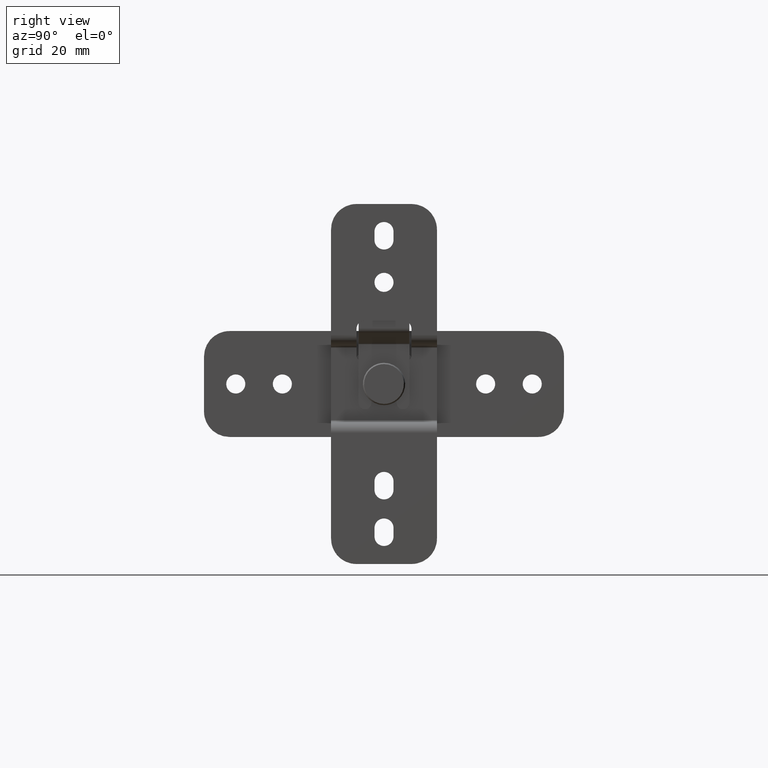
[diagram: clean part render]
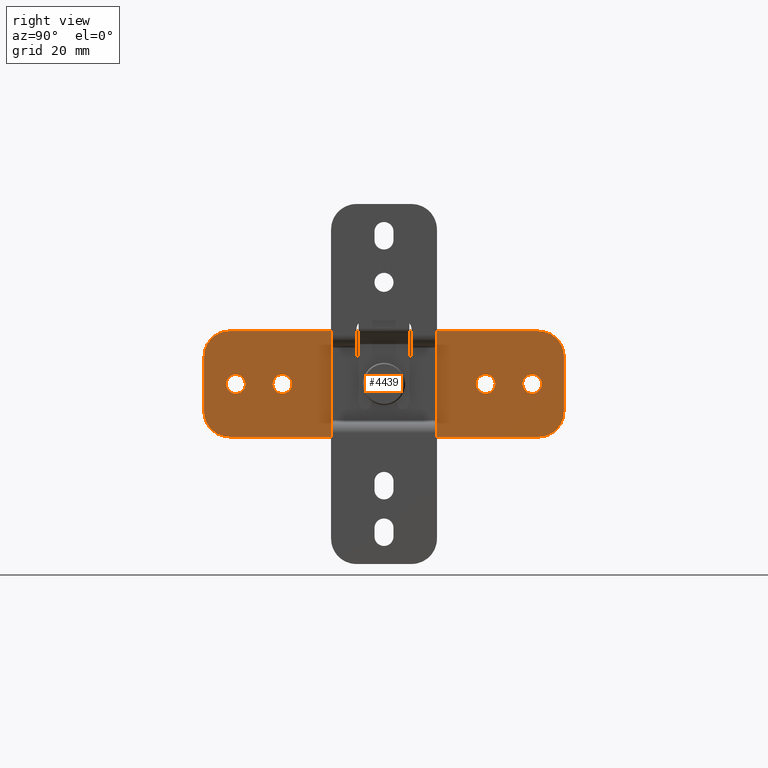
[diagram: same view with one face highlighted and labeled with its STEP entity id]
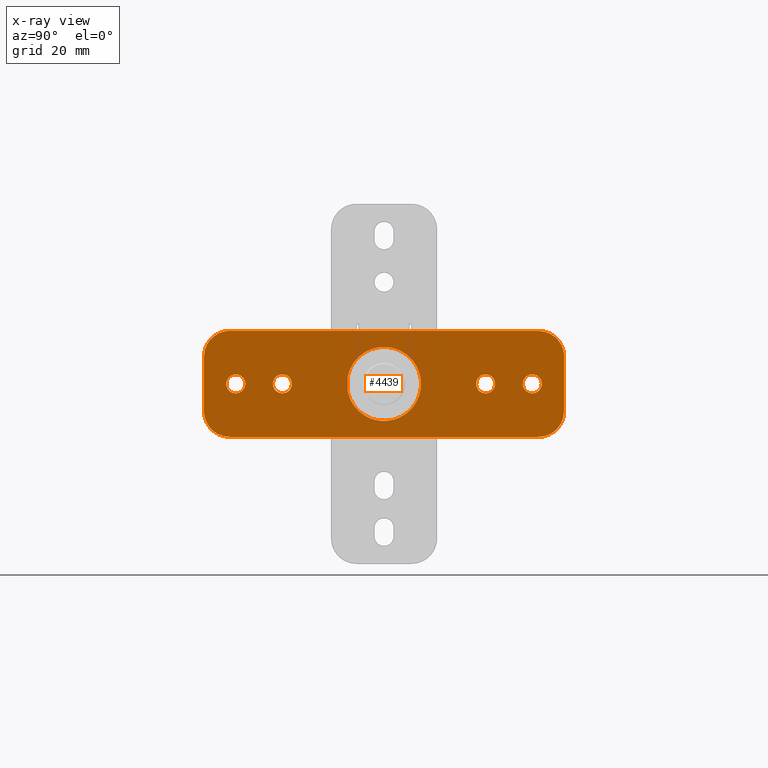
[diagram: x-ray of the same camera — body ghosted, the highlighted face saturated]
A machine part, right view. The second image highlights one B-rep face of the part: STEP entity #4439.
The next image is the same camera in x-ray: the body ghosted, the highlighted face saturated — about 0% of this face is hidden behind the body in this view.
In plain terms, the highlighted face is a freeform B-spline surface patch.
Its self-contained STEP definition (entity closure, byte-faithful):
#3115=CARTESIAN_POINT('',(113.500000000000000,34.999999999997762,-2.249999999967883));
#3116=VERTEX_POINT('',#3115);
#3117=CARTESIAN_POINT('',(113.499999999999800,32.756935728052802,-0.176529521329306));
#3118=VERTEX_POINT('',#3117);
#3119=CARTESIAN_POINT('',(113.500000000000000,34.999999999997762,-2.249999999967883));
#3120=CARTESIAN_POINT('',(113.499999999999900,32.920118190421881,-2.249999999967780));
#3121=CARTESIAN_POINT('',(113.499999999999770,32.756935728052788,-0.176529521329306));
#3129=(BOUNDED_CURVE()B_SPLINE_CURVE(2,(#3119,#3120,#3121),.UNSPECIFIED.,.F.,.U.)B_SPLINE_CURVE_WITH_KNOTS((3,3),(0.0,0.236331563839941),.UNSPECIFIED.)CURVE()GEOMETRIC_REPRESENTATION_ITEM()RATIONAL_B_SPLINE_CURVE((1.0,0.723120350238811,0.969723905465757))REPRESENTATION_ITEM(''));
#3130=EDGE_CURVE('',#3116,#3118,#3129,.T.);
#3132=CARTESIAN_POINT('',(113.499999999999800,37.243064271942707,0.176529521393539));
#3133=VERTEX_POINT('',#3132);
#3134=CARTESIAN_POINT('',(113.499999999999870,37.243064271942714,0.176529521393539));
#3135=CARTESIAN_POINT('',(113.499999999999820,37.249999999995161,0.088401010794997));
#3136=CARTESIAN_POINT('',(113.499999999999800,37.249999999995197,3.191663E-011));
#3137=CARTESIAN_POINT('',(113.499999999999900,37.249999999996533,-2.249999999967980));
#3138=CARTESIAN_POINT('',(113.500000000000000,34.999999999997762,-2.249999999967883));
#3146=(BOUNDED_CURVE()B_SPLINE_CURVE(2,(#3134,#3135,#3136,#3137,#3138),.UNSPECIFIED.,.F.,.U.)B_SPLINE_CURVE_WITH_KNOTS((3,2,3),(0.736331563839941,0.750000000000000,1.0),.UNSPECIFIED.)CURVE()GEOMETRIC_REPRESENTATION_ITEM()RATIONAL_B_SPLINE_CURVE((0.969723905465757,0.983986430947736,1.0,0.707106781186547,1.0))REPRESENTATION_ITEM(''));
#3147=EDGE_CURVE('',#3133,#3116,#3146,.T.);
#3214=CARTESIAN_POINT('',(113.500000000000000,34.999999999997762,2.250000000032117));
#3215=VERTEX_POINT('',#3214);
#3216=CARTESIAN_POINT('',(113.499999999999770,32.756935728052788,-0.176529521329306));
#3217=CARTESIAN_POINT('',(113.499999999999830,32.750000000000348,-0.088401010730763));
#3218=CARTESIAN_POINT('',(113.499999999999800,32.750000000000298,3.231675E-011));
#3219=CARTESIAN_POINT('',(113.499999999999900,32.749999999998984,2.250000000032213));
#3220=CARTESIAN_POINT('',(113.500000000000000,34.999999999997762,2.250000000032117));
#3228=(BOUNDED_CURVE()B_SPLINE_CURVE(2,(#3216,#3217,#3218,#3219,#3220),.UNSPECIFIED.,.F.,.U.)B_SPLINE_CURVE_WITH_KNOTS((3,2,3),(0.236331563839941,0.250000000000000,0.500000000000000),.UNSPECIFIED.)CURVE()GEOMETRIC_REPRESENTATION_ITEM()RATIONAL_B_SPLINE_CURVE((0.969723905465757,0.983986430947736,1.0,0.707106781186547,1.0))REPRESENTATION_ITEM(''));
#3229=EDGE_CURVE('',#3118,#3215,#3228,.T.);
#3263=CARTESIAN_POINT('',(113.500000000000000,34.999999999997762,2.250000000032117));
#3264=CARTESIAN_POINT('',(113.499999999999910,37.079881809573621,2.250000000032012));
#3265=CARTESIAN_POINT('',(113.499999999999870,37.243064271942714,0.176529521393539));
#3273=(BOUNDED_CURVE()B_SPLINE_CURVE(2,(#3263,#3264,#3265),.UNSPECIFIED.,.F.,.U.)B_SPLINE_CURVE_WITH_KNOTS((3,3),(0.500000000000000,0.736331563839941),.UNSPECIFIED.)CURVE()GEOMETRIC_REPRESENTATION_ITEM()RATIONAL_B_SPLINE_CURVE((1.0,0.723120350238811,0.969723905465757))REPRESENTATION_ITEM(''));
#3274=EDGE_CURVE('',#3215,#3133,#3273,.T.);
#3297=CARTESIAN_POINT('',(113.500000000000000,23.999999999997751,-2.249999999967883));
#3298=VERTEX_POINT('',#3297);
#3299=CARTESIAN_POINT('',(113.499999999999800,21.756935728052792,-0.176529521329306));
#3300=VERTEX_POINT('',#3299);
#3301=CARTESIAN_POINT('',(113.500000000000000,23.999999999997751,-2.249999999967883));
#3302=CARTESIAN_POINT('',(113.499999999999910,21.920118190421871,-2.249999999967780));
#3303=CARTESIAN_POINT('',(113.499999999999870,21.756935728052792,-0.176529521329306));
#3311=(BOUNDED_CURVE()B_SPLINE_CURVE(2,(#3301,#3302,#3303),.UNSPECIFIED.,.F.,.U.)B_SPLINE_CURVE_WITH_KNOTS((3,3),(0.0,0.236331563839941),.UNSPECIFIED.)CURVE()GEOMETRIC_REPRESENTATION_ITEM()RATIONAL_B_SPLINE_CURVE((1.0,0.723120350238811,0.969723905465757))REPRESENTATION_ITEM(''));
#3312=EDGE_CURVE('',#3298,#3300,#3311,.T.);
#3314=CARTESIAN_POINT('',(113.499999999999800,26.243064271942711,0.176529521393539));
#3315=VERTEX_POINT('',#3314);
#3316=CARTESIAN_POINT('',(113.499999999999870,26.243064271942711,0.176529521393539));
#3317=CARTESIAN_POINT('',(113.499999999999820,26.249999999995154,0.088401010794997));
#3318=CARTESIAN_POINT('',(113.499999999999800,26.249999999995200,3.191663E-011));
#3319=CARTESIAN_POINT('',(113.499999999999900,26.249999999996522,-2.249999999967980));
#3320=CARTESIAN_POINT('',(113.500000000000000,23.999999999997751,-2.249999999967883));
#3328=(BOUNDED_CURVE()B_SPLINE_CURVE(2,(#3316,#3317,#3318,#3319,#3320),.UNSPECIFIED.,.F.,.U.)B_SPLINE_CURVE_WITH_KNOTS((3,2,3),(0.736331563839941,0.750000000000000,1.0),.UNSPECIFIED.)CURVE()GEOMETRIC_REPRESENTATION_ITEM()RATIONAL_B_SPLINE_CURVE((0.969723905465757,0.983986430947736,1.0,0.707106781186547,1.0))REPRESENTATION_ITEM(''));
#3329=EDGE_CURVE('',#3315,#3298,#3328,.T.);
#3396=CARTESIAN_POINT('',(113.500000000000000,23.999999999997751,2.250000000032117));
#3397=VERTEX_POINT('',#3396);
#3398=CARTESIAN_POINT('',(113.499999999999870,21.756935728052792,-0.176529521329306));
#3399=CARTESIAN_POINT('',(113.499999999999820,21.750000000000348,-0.088401010730764));
#3400=CARTESIAN_POINT('',(113.499999999999800,21.750000000000298,3.231624E-011));
#3401=CARTESIAN_POINT('',(113.499999999999900,21.749999999998973,2.250000000032212));
#3402=CARTESIAN_POINT('',(113.500000000000000,23.999999999997751,2.250000000032117));
#3410=(BOUNDED_CURVE()B_SPLINE_CURVE(2,(#3398,#3399,#3400,#3401,#3402),.UNSPECIFIED.,.F.,.U.)B_SPLINE_CURVE_WITH_KNOTS((3,2,3),(0.236331563839941,0.250000000000000,0.500000000000000),.UNSPECIFIED.)CURVE()GEOMETRIC_REPRESENTATION_ITEM()RATIONAL_B_SPLINE_CURVE((0.969723905465757,0.983986430947736,1.0,0.707106781186547,1.0))REPRESENTATION_ITEM(''));
#3411=EDGE_CURVE('',#3300,#3397,#3410,.T.);
#3445=CARTESIAN_POINT('',(113.500000000000000,23.999999999997751,2.250000000032117));
#3446=CARTESIAN_POINT('',(113.499999999999910,26.079881809573610,2.250000000032012));
#3447=CARTESIAN_POINT('',(113.499999999999870,26.243064271942711,0.176529521393539));
#3455=(BOUNDED_CURVE()B_SPLINE_CURVE(2,(#3445,#3446,#3447),.UNSPECIFIED.,.F.,.U.)B_SPLINE_CURVE_WITH_KNOTS((3,3),(0.500000000000000,0.736331563839941),.UNSPECIFIED.)CURVE()GEOMETRIC_REPRESENTATION_ITEM()RATIONAL_B_SPLINE_CURVE((1.0,0.723120350238811,0.969723905465757))REPRESENTATION_ITEM(''));
#3456=EDGE_CURVE('',#3397,#3315,#3455,.T.);
#3479=CARTESIAN_POINT('',(113.500000000000000,-24.000000000002299,-2.249999999967883));
#3480=VERTEX_POINT('',#3479);
#3481=CARTESIAN_POINT('',(113.499999999999800,-26.243064271947262,-0.176529521329306));
#3482=VERTEX_POINT('',#3481);
#3483=CARTESIAN_POINT('',(113.500000000000000,-24.000000000002299,-2.249999999967883));
#3484=CARTESIAN_POINT('',(113.499999999999900,-26.079881809578175,-2.249999999967780));
#3485=CARTESIAN_POINT('',(113.499999999999870,-26.243064271947269,-0.176529521329306));
#3493=(BOUNDED_CURVE()B_SPLINE_CURVE(2,(#3483,#3484,#3485),.UNSPECIFIED.,.F.,.U.)B_SPLINE_CURVE_WITH_KNOTS((3,3),(0.0,0.236331563839941),.UNSPECIFIED.)CURVE()GEOMETRIC_REPRESENTATION_ITEM()RATIONAL_B_SPLINE_CURVE((1.0,0.723120350238811,0.969723905465757))REPRESENTATION_ITEM(''));
#3494=EDGE_CURVE('',#3480,#3482,#3493,.T.);
#3496=CARTESIAN_POINT('',(113.499999999999800,-21.756935728057339,0.176529521393539));
#3497=VERTEX_POINT('',#3496);
#3498=CARTESIAN_POINT('',(113.499999999999870,-21.756935728057339,0.176529521393539));
#3499=CARTESIAN_POINT('',(113.499999999999820,-21.750000000004903,0.088401010794997));
#3500=CARTESIAN_POINT('',(113.499999999999800,-21.750000000004849,3.191663E-011));
#3501=CARTESIAN_POINT('',(113.499999999999900,-21.750000000003528,-2.249999999967980));
#3502=CARTESIAN_POINT('',(113.500000000000000,-24.000000000002299,-2.249999999967883));
#3510=(BOUNDED_CURVE()B_SPLINE_CURVE(2,(#3498,#3499,#3500,#3501,#3502),.UNSPECIFIED.,.F.,.U.)B_SPLINE_CURVE_WITH_KNOTS((3,2,3),(0.736331563839941,0.750000000000000,1.0),.UNSPECIFIED.)CURVE()GEOMETRIC_REPRESENTATION_ITEM()RATIONAL_B_SPLINE_CURVE((0.969723905465757,0.983986430947736,1.0,0.707106781186547,1.0))REPRESENTATION_ITEM(''));
#3511=EDGE_CURVE('',#3497,#3480,#3510,.T.);
#3578=CARTESIAN_POINT('',(113.500000000000000,-24.000000000002299,2.250000000032117));
#3579=VERTEX_POINT('',#3578);
#3580=CARTESIAN_POINT('',(113.499999999999870,-26.243064271947269,-0.176529521329306));
#3581=CARTESIAN_POINT('',(113.499999999999820,-26.249999999999705,-0.088401010730763));
#3582=CARTESIAN_POINT('',(113.499999999999800,-26.249999999999758,3.231659E-011));
#3583=CARTESIAN_POINT('',(113.499999999999910,-26.250000000001073,2.250000000032213));
#3584=CARTESIAN_POINT('',(113.500000000000000,-24.000000000002299,2.250000000032117));
#3592=(BOUNDED_CURVE()B_SPLINE_CURVE(2,(#3580,#3581,#3582,#3583,#3584),.UNSPECIFIED.,.F.,.U.)B_SPLINE_CURVE_WITH_KNOTS((3,2,3),(0.236331563839941,0.250000000000000,0.500000000000000),.UNSPECIFIED.)CURVE()GEOMETRIC_REPRESENTATION_ITEM()RATIONAL_B_SPLINE_CURVE((0.969723905465757,0.983986430947736,1.0,0.707106781186547,1.0))REPRESENTATION_ITEM(''));
#3593=EDGE_CURVE('',#3482,#3579,#3592,.T.);
#3627=CARTESIAN_POINT('',(113.500000000000000,-24.000000000002299,2.250000000032117));
#3628=CARTESIAN_POINT('',(113.499999999999910,-21.920118190426436,2.250000000032012));
#3629=CARTESIAN_POINT('',(113.499999999999870,-21.756935728057339,0.176529521393539));
#3637=(BOUNDED_CURVE()B_SPLINE_CURVE(2,(#3627,#3628,#3629),.UNSPECIFIED.,.F.,.U.)B_SPLINE_CURVE_WITH_KNOTS((3,3),(0.500000000000000,0.736331563839941),.UNSPECIFIED.)CURVE()GEOMETRIC_REPRESENTATION_ITEM()RATIONAL_B_SPLINE_CURVE((1.0,0.723120350238811,0.969723905465757))REPRESENTATION_ITEM(''));
#3638=EDGE_CURVE('',#3579,#3497,#3637,.T.);
#3661=CARTESIAN_POINT('',(113.500000000000000,-35.000000000002252,-2.249999999967883));
#3662=VERTEX_POINT('',#3661);
#3663=CARTESIAN_POINT('',(113.499999999999800,-37.243064271947212,-0.176529521329306));
#3664=VERTEX_POINT('',#3663);
#3665=CARTESIAN_POINT('',(113.500000000000000,-35.000000000002252,-2.249999999967883));
#3666=CARTESIAN_POINT('',(113.499999999999900,-37.079881809578126,-2.249999999967780));
#3667=CARTESIAN_POINT('',(113.499999999999870,-37.243064271947219,-0.176529521329306));
#3675=(BOUNDED_CURVE()B_SPLINE_CURVE(2,(#3665,#3666,#3667),.UNSPECIFIED.,.F.,.U.)B_SPLINE_CURVE_WITH_KNOTS((3,3),(0.0,0.236331563839941),.UNSPECIFIED.)CURVE()GEOMETRIC_REPRESENTATION_ITEM()RATIONAL_B_SPLINE_CURVE((1.0,0.723120350238811,0.969723905465757))REPRESENTATION_ITEM(''));
#3676=EDGE_CURVE('',#3662,#3664,#3675,.T.);
#3678=CARTESIAN_POINT('',(113.499999999999800,-32.756935728057293,0.176529521393539));
#3679=VERTEX_POINT('',#3678);
#3680=CARTESIAN_POINT('',(113.499999999999870,-32.756935728057293,0.176529521393539));
#3681=CARTESIAN_POINT('',(113.499999999999820,-32.750000000004846,0.088401010794997));
#3682=CARTESIAN_POINT('',(113.499999999999800,-32.750000000004803,3.191663E-011));
#3683=CARTESIAN_POINT('',(113.499999999999900,-32.750000000003475,-2.249999999967980));
#3684=CARTESIAN_POINT('',(113.500000000000000,-35.000000000002252,-2.249999999967883));
#3692=(BOUNDED_CURVE()B_SPLINE_CURVE(2,(#3680,#3681,#3682,#3683,#3684),.UNSPECIFIED.,.F.,.U.)B_SPLINE_CURVE_WITH_KNOTS((3,2,3),(0.736331563839941,0.750000000000000,1.0),.UNSPECIFIED.)CURVE()GEOMETRIC_REPRESENTATION_ITEM()RATIONAL_B_SPLINE_CURVE((0.969723905465757,0.983986430947736,1.0,0.707106781186547,1.0))REPRESENTATION_ITEM(''));
#3693=EDGE_CURVE('',#3679,#3662,#3692,.T.);
#3760=CARTESIAN_POINT('',(113.500000000000000,-35.000000000002252,2.250000000032117));
#3761=VERTEX_POINT('',#3760);
#3762=CARTESIAN_POINT('',(113.499999999999870,-37.243064271947219,-0.176529521329306));
#3763=CARTESIAN_POINT('',(113.499999999999820,-37.249999999999666,-0.088401010730763));
#3764=CARTESIAN_POINT('',(113.499999999999800,-37.249999999999723,3.231659E-011));
#3765=CARTESIAN_POINT('',(113.499999999999910,-37.250000000001030,2.250000000032213));
#3766=CARTESIAN_POINT('',(113.500000000000000,-35.000000000002252,2.250000000032117));
#3774=(BOUNDED_CURVE()B_SPLINE_CURVE(2,(#3762,#3763,#3764,#3765,#3766),.UNSPECIFIED.,.F.,.U.)B_SPLINE_CURVE_WITH_KNOTS((3,2,3),(0.236331563839941,0.250000000000000,0.500000000000000),.UNSPECIFIED.)CURVE()GEOMETRIC_REPRESENTATION_ITEM()RATIONAL_B_SPLINE_CURVE((0.969723905465757,0.983986430947736,1.0,0.707106781186547,1.0))REPRESENTATION_ITEM(''));
#3775=EDGE_CURVE('',#3664,#3761,#3774,.T.);
#3809=CARTESIAN_POINT('',(113.500000000000000,-35.000000000002252,2.250000000032117));
#3810=CARTESIAN_POINT('',(113.499999999999910,-32.920118190426386,2.250000000032012));
#3811=CARTESIAN_POINT('',(113.499999999999870,-32.756935728057293,0.176529521393539));
#3819=(BOUNDED_CURVE()B_SPLINE_CURVE(2,(#3809,#3810,#3811),.UNSPECIFIED.,.F.,.U.)B_SPLINE_CURVE_WITH_KNOTS((3,3),(0.500000000000000,0.736331563839941),.UNSPECIFIED.)CURVE()GEOMETRIC_REPRESENTATION_ITEM()RATIONAL_B_SPLINE_CURVE((1.0,0.723120350238811,0.969723905465757))REPRESENTATION_ITEM(''));
#3820=EDGE_CURVE('',#3761,#3679,#3819,.T.);
#4112=CARTESIAN_POINT('',(113.500000000000000,-42.500000000002252,-6.499999999967890));
#4113=VERTEX_POINT('',#4112);
#4114=CARTESIAN_POINT('',(113.500000000000000,-42.500000000002501,6.500000000032120));
#4115=VERTEX_POINT('',#4114);
#4116=CARTESIAN_POINT('',(113.500000000000000,-42.500000000002252,-6.499999999967890));
#4117=CARTESIAN_POINT('',(113.500000000000000,-42.500000000002501,6.500000000032120));
#4118=QUASI_UNIFORM_CURVE('',1,(#4116,#4117),.UNSPECIFIED.,.F.,.U.);
#4119=EDGE_CURVE('',#4113,#4115,#4118,.T.);
#4149=CARTESIAN_POINT('',(113.500000000000000,-36.500000000002302,-12.499999999967899));
#4150=VERTEX_POINT('',#4149);
#4151=CARTESIAN_POINT('',(113.500000000000000,-36.500000000002302,-12.499999999967880));
#4152=CARTESIAN_POINT('',(113.500000000000000,-42.500000000002288,-12.499999999967880));
#4153=CARTESIAN_POINT('',(113.500000000000000,-42.500000000002302,-6.499999999967880));
#4161=(BOUNDED_CURVE()B_SPLINE_CURVE(2,(#4151,#4152,#4153),.UNSPECIFIED.,.F.,.U.)CURVE()GEOMETRIC_REPRESENTATION_ITEM()QUASI_UNIFORM_CURVE()RATIONAL_B_SPLINE_CURVE((1.0,0.707106781186548,1.0))REPRESENTATION_ITEM(''));
#4162=EDGE_CURVE('',#4150,#4113,#4161,.T.);
#4179=CARTESIAN_POINT('',(113.500000000000000,36.499999999997762,-12.499999999967701));
#4180=VERTEX_POINT('',#4179);
#4181=CARTESIAN_POINT('',(113.500000000000000,36.499999999997762,-12.499999999967701));
#4182=CARTESIAN_POINT('',(113.500000000000000,-36.500000000002302,-12.499999999967899));
#4183=QUASI_UNIFORM_CURVE('',1,(#4181,#4182),.UNSPECIFIED.,.F.,.U.);
#4184=EDGE_CURVE('',#4180,#4150,#4183,.T.);
#4210=CARTESIAN_POINT('',(113.500000000000000,42.499999999997762,-6.499999999967709));
#4211=VERTEX_POINT('',#4210);
#4212=CARTESIAN_POINT('',(113.500000000000000,42.499999999997762,-6.499999999967709));
#4213=CARTESIAN_POINT('',(113.500000000000000,42.499999999997748,-12.499999999967713));
#4214=CARTESIAN_POINT('',(113.500000000000000,36.499999999997762,-12.499999999967709));
#4222=(BOUNDED_CURVE()B_SPLINE_CURVE(2,(#4212,#4213,#4214),.UNSPECIFIED.,.F.,.U.)CURVE()GEOMETRIC_REPRESENTATION_ITEM()QUASI_UNIFORM_CURVE()RATIONAL_B_SPLINE_CURVE((1.0,0.707106781186548,1.0))REPRESENTATION_ITEM(''));
#4223=EDGE_CURVE('',#4211,#4180,#4222,.T.);
#4240=CARTESIAN_POINT('',(113.500000000000000,42.499999999997762,6.500000000032120));
#4241=VERTEX_POINT('',#4240);
#4242=CARTESIAN_POINT('',(113.500000000000000,42.499999999997762,6.500000000032120));
#4243=CARTESIAN_POINT('',(113.500000000000000,42.499999999997762,-6.499999999967709));
#4244=QUASI_UNIFORM_CURVE('',1,(#4242,#4243),.UNSPECIFIED.,.F.,.U.);
#4245=EDGE_CURVE('',#4241,#4211,#4244,.T.);
#4271=CARTESIAN_POINT('',(113.500000000000000,36.499999999997762,12.500000000032120));
#4272=VERTEX_POINT('',#4271);
#4273=CARTESIAN_POINT('',(113.500000000000000,36.499999999997762,12.500000000032120));
#4274=CARTESIAN_POINT('',(113.500000000000000,42.499999999997748,12.500000000032117));
#4275=CARTESIAN_POINT('',(113.500000000000000,42.499999999997762,6.500000000032120));
#4283=(BOUNDED_CURVE()B_SPLINE_CURVE(2,(#4273,#4274,#4275),.UNSPECIFIED.,.F.,.U.)CURVE()GEOMETRIC_REPRESENTATION_ITEM()QUASI_UNIFORM_CURVE()RATIONAL_B_SPLINE_CURVE((1.0,0.707106781186548,1.0))REPRESENTATION_ITEM(''));
#4284=EDGE_CURVE('',#4272,#4241,#4283,.T.);
#4301=CARTESIAN_POINT('',(113.500000000000000,-36.500000000002302,12.500000000032120));
#4302=VERTEX_POINT('',#4301);
#4303=CARTESIAN_POINT('',(113.500000000000000,-36.500000000002302,12.500000000032120));
#4304=CARTESIAN_POINT('',(113.500000000000000,36.499999999997762,12.500000000032120));
#4305=QUASI_UNIFORM_CURVE('',1,(#4303,#4304),.UNSPECIFIED.,.F.,.U.);
#4306=EDGE_CURVE('',#4302,#4272,#4305,.T.);
#4332=CARTESIAN_POINT('',(113.500000000000000,-42.500000000002302,6.500000000032120));
#4333=CARTESIAN_POINT('',(113.500000000000000,-42.500000000002288,12.500000000032117));
#4334=CARTESIAN_POINT('',(113.500000000000000,-36.500000000002302,12.500000000032120));
#4342=(BOUNDED_CURVE()B_SPLINE_CURVE(2,(#4332,#4333,#4334),.UNSPECIFIED.,.F.,.U.)CURVE()GEOMETRIC_REPRESENTATION_ITEM()QUASI_UNIFORM_CURVE()RATIONAL_B_SPLINE_CURVE((1.0,0.707106781186548,1.0))REPRESENTATION_ITEM(''));
#4343=EDGE_CURVE('',#4115,#4302,#4342,.T.);
#4351=CARTESIAN_POINT('',(113.500000000000000,46.745749835251267,-13.748749951513050));
#4352=CARTESIAN_POINT('',(113.500000000000000,-46.745752115133683,-13.748749951513050));
#4353=CARTESIAN_POINT('',(113.500000000000000,46.745749835251267,13.748750622129529));
#4354=CARTESIAN_POINT('',(113.500000000000000,-46.745752115133683,13.748750622129529));
#4355=B_SPLINE_SURFACE_WITH_KNOTS('',1,1,((#4351,#4353),(#4352,#4354)),.UNSPECIFIED.,.F.,.F.,.U.,(2,2),(2,2),(0.0,93.491501950384958),(0.0,27.497500573642579),.UNSPECIFIED.);
#4356=ORIENTED_EDGE('',*,*,#4343,.F.);
#4357=ORIENTED_EDGE('',*,*,#4119,.F.);
#4358=ORIENTED_EDGE('',*,*,#4162,.F.);
#4359=ORIENTED_EDGE('',*,*,#4184,.F.);
#4360=ORIENTED_EDGE('',*,*,#4223,.F.);
#4361=ORIENTED_EDGE('',*,*,#4245,.F.);
#4362=ORIENTED_EDGE('',*,*,#4284,.F.);
#4363=ORIENTED_EDGE('',*,*,#4306,.F.);
#4364=EDGE_LOOP('',(#4356,#4357,#4358,#4359,#4360,#4361,#4362,#4363));
#4365=FACE_OUTER_BOUND('',#4364,.T.);
#4366=CARTESIAN_POINT('',(113.500000000000000,-8.549999999967881,1.860107523802490));
#4367=VERTEX_POINT('',#4366);
#4368=CARTESIAN_POINT('',(113.500000000000000,-8.550000000005941,-1.860107523746535));
#4369=VERTEX_POINT('',#4368);
#4370=CARTESIAN_POINT('',(113.500000000000000,-8.549999999967881,1.860107523802490));
#4371=CARTESIAN_POINT('',(113.500000000000000,-8.443691484513913,2.348943579684955));
#4372=CARTESIAN_POINT('',(113.500000000000200,-8.156755708863477,3.276335436281433));
#4373=CARTESIAN_POINT('',(113.500000000000000,-7.390508003453893,4.801071948203357));
#4374=CARTESIAN_POINT('',(113.499999999998710,-6.281872035078447,6.195832582450008));
#4375=CARTESIAN_POINT('',(113.500000000001090,-4.896476241843902,7.307203028898116));
#4376=CARTESIAN_POINT('',(113.499999999998590,-3.662494573753856,7.979607162099689));
#4377=CARTESIAN_POINT('',(113.500000000001410,-2.284290197674377,8.492197308497703));
#4378=CARTESIAN_POINT('',(113.499999999998290,-0.866150040969196,8.756799027313356));
#4379=CARTESIAN_POINT('',(113.500000000003400,0.839550753148476,8.759376514655422));
#4380=CARTESIAN_POINT('',(113.499999999996110,2.192452674374952,8.511214059580809));
#4381=CARTESIAN_POINT('',(113.500000000003200,3.514033003766387,8.041330382855390));
#4382=CARTESIAN_POINT('',(113.499999999999900,4.854494163101806,7.355551691314618));
#4383=CARTESIAN_POINT('',(113.499999999997500,6.162638417499914,6.300148332029796));
#4384=CARTESIAN_POINT('',(113.500000000007900,7.264810983458605,4.953815249133425));
#4385=CARTESIAN_POINT('',(113.499999999995200,8.089106334068553,3.496116680121411));
#4386=CARTESIAN_POINT('',(113.499999999995790,8.568529867951600,1.992915307367704));
#4387=CARTESIAN_POINT('',(113.500000000011000,8.765570669025488,0.502082036299087));
#4388=CARTESIAN_POINT('',(113.499999999995100,8.747863617616540,-1.070435744849857));
#4389=CARTESIAN_POINT('',(113.500000000001610,8.363716373497393,-2.810177306790918));
#4390=CARTESIAN_POINT('',(113.499999999999600,7.535390096410294,-4.568481822263905));
#4391=CARTESIAN_POINT('',(113.500000000000100,6.545608955984971,-5.881048394393596));
#4392=CARTESIAN_POINT('',(113.500000000000000,5.288012840512675,-7.033387315154010));
#4393=CARTESIAN_POINT('',(113.500000000000100,4.007954736455607,-7.833783577614942));
#4394=CARTESIAN_POINT('',(113.499999999999900,2.452425560903734,-8.447550166451583));
#4395=CARTESIAN_POINT('',(113.500000000000100,0.973306415155390,-8.745235976889456));
#4396=CARTESIAN_POINT('',(113.500000000000000,-0.465265463033767,-8.767643341625222));
#4397=CARTESIAN_POINT('',(113.500000000000000,-1.857497108793345,-8.589483638473610));
#4398=CARTESIAN_POINT('',(113.500000000000000,-3.239345044008031,-8.181054859519504));
#4399=CARTESIAN_POINT('',(113.499999999999600,-4.731363563465478,-7.422487232617392));
#4400=CARTESIAN_POINT('',(113.500000000001290,-5.950713384270960,-6.478028954836330));
#4401=CARTESIAN_POINT('',(113.500000000002800,-6.936910993986083,-5.385827863512492));
#4402=CARTESIAN_POINT('',(113.499999999980600,-7.898686655977418,-3.936817980460448));
#4403=CARTESIAN_POINT('',(113.500000000048400,-8.365990325915305,-2.707565852287080));
#4404=CARTESIAN_POINT('',(113.500000000000000,-8.550000000005941,-1.860107523746535));
#4405=B_SPLINE_CURVE_WITH_KNOTS('',3,(#4370,#4371,#4372,#4373,#4374,#4375,#4376,#4377,#4378,#4379,#4380,#4381,#4382,#4383,#4384,#4385,#4386,#4387,#4388,#4389,#4390,#4391,#4392,#4393,#4394,#4395,#4396,#4397,#4398,#4399,#4400,#4401,#4402,#4403,#4404),.UNSPECIFIED.,.F.,.U.,(4,1,1,1,1,1,1,1,1,1,1,1,1,1,1,1,1,1,1,1,1,1,1,1,1,1,1,1,1,1,1,1,4),(0.000000463653357,1.500788953094663,2.901656905191175,5.102905897109785,6.803900690264968,8.204727348441793,9.305347580732295,11.206464533617281,12.507235608656689,14.408248515519981,15.308764064206510,16.709531451284452,18.910828612401929,20.311647335768889,21.912586774475550,23.913694916382809,25.014335730319949,26.415060066374888,28.616370619807672,30.317347858150971,32.218446728389040,33.519213223331278,35.420292969332792,36.721043046821457,38.522014956163183,39.922798369325101,41.023481282669167,42.724449253634162,44.225317197467383,46.026368682875074,47.327109431496730,48.627845623342012,51.229329281053722),.UNSPECIFIED.);
#4406=EDGE_CURVE('',#4367,#4369,#4405,.T.);
#4407=ORIENTED_EDGE('',*,*,#4406,.T.);
#4408=CARTESIAN_POINT('',(113.500000000000000,-8.549999999967881,1.860107523802490));
#4409=CARTESIAN_POINT('',(113.500000000000000,-8.550000000005941,-1.860107523746535));
#4410=QUASI_UNIFORM_CURVE('',1,(#4408,#4409),.UNSPECIFIED.,.F.,.U.);
#4411=EDGE_CURVE('',#4367,#4369,#4410,.T.);
#4412=ORIENTED_EDGE('',*,*,#4411,.F.);
#4413=EDGE_LOOP('',(#4407,#4412));
#4414=FACE_BOUND('',#4413,.T.);
#4415=ORIENTED_EDGE('',*,*,#3820,.T.);
#4416=ORIENTED_EDGE('',*,*,#3693,.T.);
#4417=ORIENTED_EDGE('',*,*,#3676,.T.);
#4418=ORIENTED_EDGE('',*,*,#3775,.T.);
#4419=EDGE_LOOP('',(#4415,#4416,#4417,#4418));
#4420=FACE_BOUND('',#4419,.T.);
#4421=ORIENTED_EDGE('',*,*,#3638,.T.);
#4422=ORIENTED_EDGE('',*,*,#3511,.T.);
#4423=ORIENTED_EDGE('',*,*,#3494,.T.);
#4424=ORIENTED_EDGE('',*,*,#3593,.T.);
#4425=EDGE_LOOP('',(#4421,#4422,#4423,#4424));
#4426=FACE_BOUND('',#4425,.T.);
#4427=ORIENTED_EDGE('',*,*,#3456,.T.);
#4428=ORIENTED_EDGE('',*,*,#3329,.T.);
#4429=ORIENTED_EDGE('',*,*,#3312,.T.);
#4430=ORIENTED_EDGE('',*,*,#3411,.T.);
#4431=EDGE_LOOP('',(#4427,#4428,#4429,#4430));
#4432=FACE_BOUND('',#4431,.T.);
#4433=ORIENTED_EDGE('',*,*,#3274,.T.);
#4434=ORIENTED_EDGE('',*,*,#3147,.T.);
#4435=ORIENTED_EDGE('',*,*,#3130,.T.);
#4436=ORIENTED_EDGE('',*,*,#3229,.T.);
#4437=EDGE_LOOP('',(#4433,#4434,#4435,#4436));
#4438=FACE_BOUND('',#4437,.T.);
#4439=ADVANCED_FACE('',(#4365,#4414,#4420,#4426,#4432,#4438),#4355,.F.);